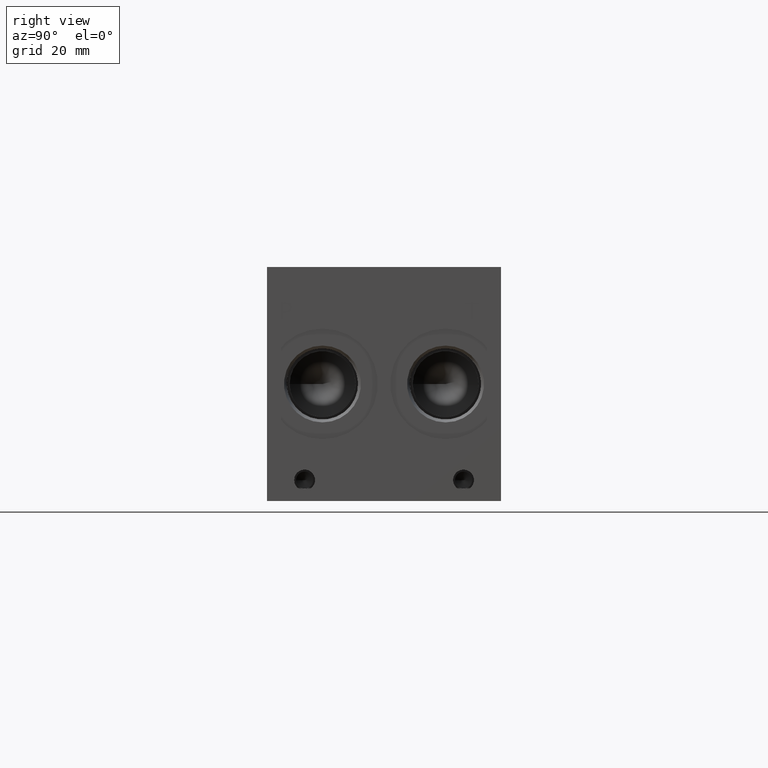
[diagram: clean part render]
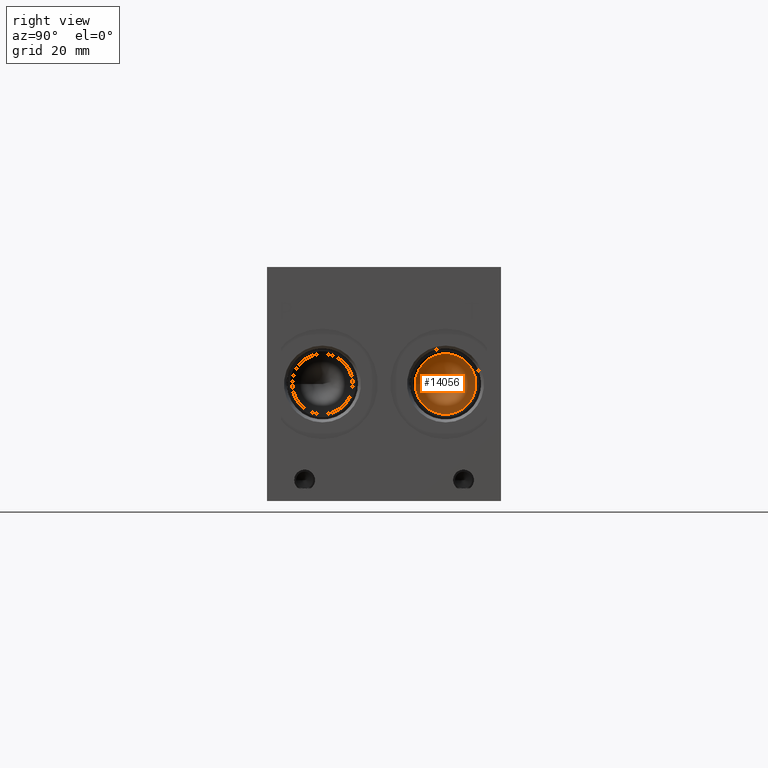
[diagram: same view with one face highlighted and labeled with its STEP entity id]
A machine part, right view. The second image highlights one B-rep face of the part: STEP entity #14056.
In plain terms, the highlighted conical surface has half-angle 60 deg.
Its self-contained STEP definition (entity closure, byte-faithful):
#27=CONICAL_SURFACE('',#14714,5.7531,1.0471975511966);
#446=CIRCLE('',#14715,11.5062);
#447=CIRCLE('',#14716,11.5062);
#1768=FACE_OUTER_BOUND('',#2577,.T.);
#2577=EDGE_LOOP('',(#11734,#11735,#11736,#11737));
#3916=LINE('',#23785,#5171);
#5171=VECTOR('',#17228,5.7531);
#6369=VERTEX_POINT('',#23781);
#6370=VERTEX_POINT('',#23782);
#6371=VERTEX_POINT('',#23784);
#8239=EDGE_CURVE('',#6369,#6370,#446,.T.);
#8240=EDGE_CURVE('',#6370,#6371,#3916,.T.);
#8241=EDGE_CURVE('',#6370,#6369,#447,.T.);
#11734=ORIENTED_EDGE('',*,*,#8239,.T.);
#11735=ORIENTED_EDGE('',*,*,#8240,.T.);
#11736=ORIENTED_EDGE('',*,*,#8240,.F.);
#11737=ORIENTED_EDGE('',*,*,#8241,.T.);
#14056=ADVANCED_FACE('',(#1768),#27,.F.);
#14714=AXIS2_PLACEMENT_3D('',#23780,#17224,#17225);
#14715=AXIS2_PLACEMENT_3D('',#23783,#17226,#17227);
#14716=AXIS2_PLACEMENT_3D('',#23786,#17229,#17230);
#17224=DIRECTION('center_axis',(1.,0.,0.));
#17225=DIRECTION('ref_axis',(0.,1.,0.));
#17226=DIRECTION('center_axis',(1.,0.,0.));
#17227=DIRECTION('ref_axis',(0.,1.,0.));
#17228=DIRECTION('',(-0.5,0.866025403784439,1.06057523872491E-16));
#17229=DIRECTION('center_axis',(1.,0.,0.));
#17230=DIRECTION('ref_axis',(0.,1.,0.));
#23780=CARTESIAN_POINT('Origin',(213.340446166325,67.818,44.45));
#23781=CARTESIAN_POINT('',(216.662,79.3242,44.45));
#23782=CARTESIAN_POINT('',(216.662,56.3118,44.45));
#23783=CARTESIAN_POINT('Origin',(216.662,67.818,44.45));
#23784=CARTESIAN_POINT('',(210.01889233265,67.818,44.45));
#23785=CARTESIAN_POINT('',(213.340446166325,62.0649,44.45));
#23786=CARTESIAN_POINT('Origin',(216.662,67.818,44.45));